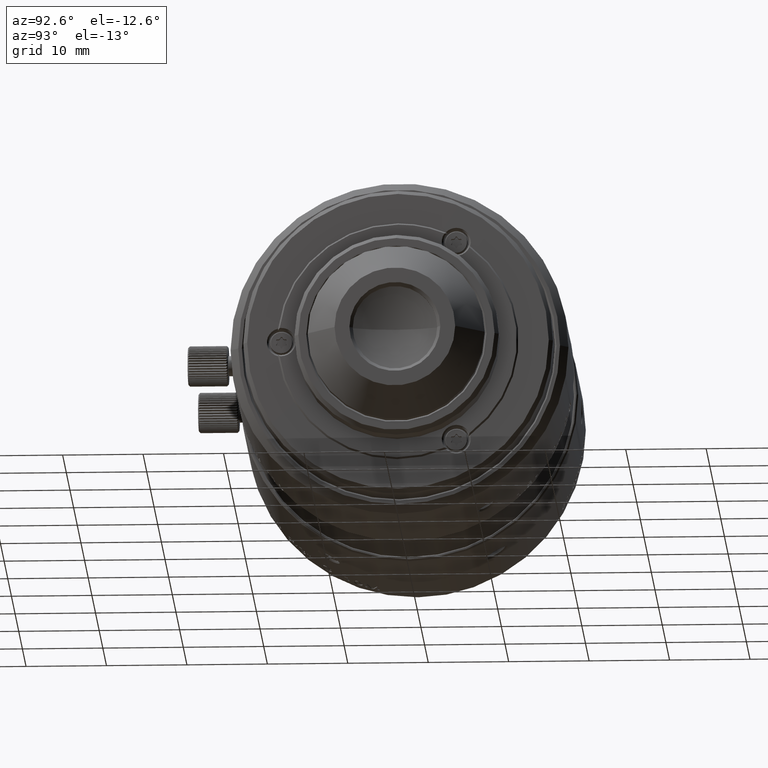
[diagram: clean part render]
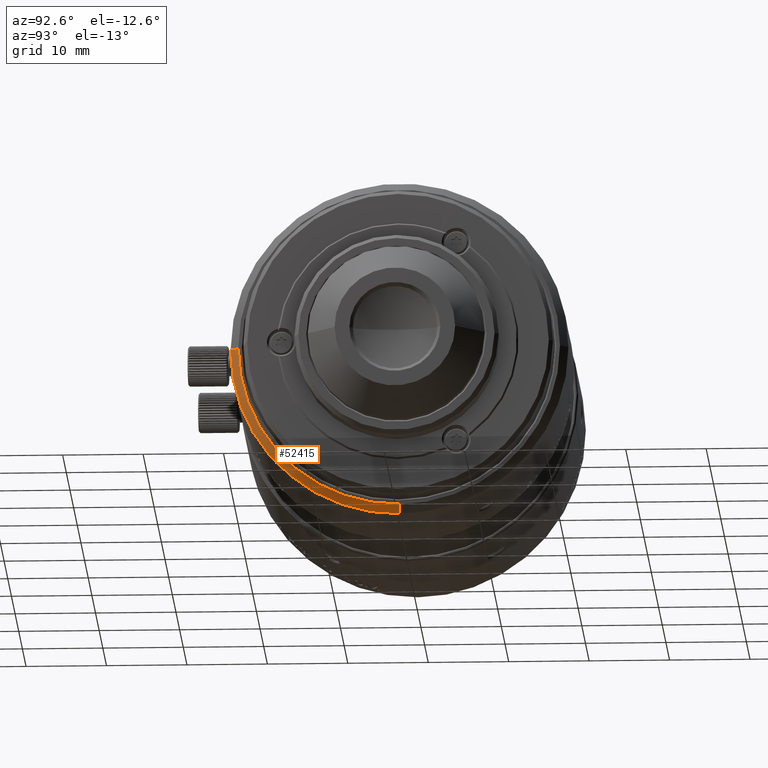
[diagram: same view with one face highlighted and labeled with its STEP entity id]
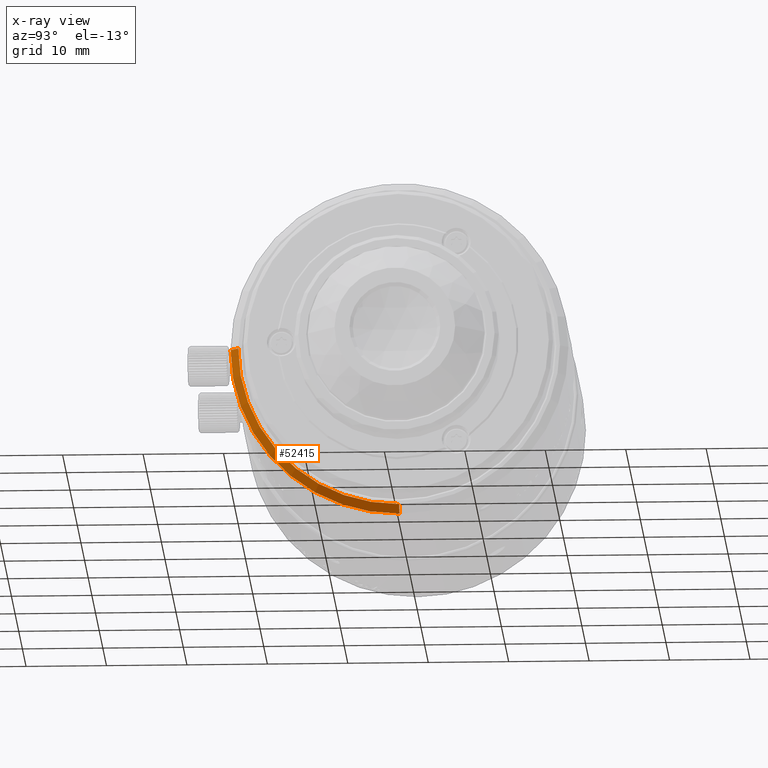
[diagram: x-ray of the same camera — body ghosted, the highlighted face saturated]
A machine part, auxiliary view. The second image highlights one B-rep face of the part: STEP entity #52415.
The next image is the same camera in x-ray: the body ghosted, the highlighted face saturated — about 0% of this face is hidden behind the body in this view.
In plain terms, the highlighted conical surface has half-angle 45 deg.
Its self-contained STEP definition (entity closure, byte-faithful):
#444 = DIRECTION ( 'NONE',  ( -1.000000000000000000, 0.000000000000000000, 0.000000000000000000 ) ) ;
#1432 = ORIENTED_EDGE ( 'NONE', *, *, #95945, .F. ) ;
#3779 = EDGE_CURVE ( 'NONE', #56837, #88262, #77096, .T. ) ;
#4043 = ORIENTED_EDGE ( 'NONE', *, *, #3779, .T. ) ;
#5712 = ORIENTED_EDGE ( 'NONE', *, *, #46629, .T. ) ;
#14974 = CARTESIAN_POINT ( 'NONE',  ( -12.65399999999999991, 0.000000000000000000, -20.99999999999989342 ) ) ;
#26358 = CARTESIAN_POINT ( 'NONE',  ( -11.65399999999999991, -20.00000000000000000, -3.253783274205000453E-10 ) ) ;
#28562 = VERTEX_POINT ( 'NONE', #14974 ) ;
#30476 = DIRECTION ( 'NONE',  ( 0.000000000000000000, 0.000000000000000000, -1.000000000000000000 ) ) ;
#32536 = VERTEX_POINT ( 'NONE', #118999 ) ;
#35574 = CIRCLE ( 'NONE', #37740, 20.00000000000000000 ) ;
#37740 = AXIS2_PLACEMENT_3D ( 'NONE', #77946, #444, #30476 ) ;
#40114 = AXIS2_PLACEMENT_3D ( 'NONE', #85152, #84502, #46415 ) ;
#41429 = VECTOR ( 'NONE', #109141, 1000.000000000000114 ) ;
#44189 = DIRECTION ( 'NONE',  ( 0.000000000000000000, 0.000000000000000000, -1.000000000000000000 ) ) ;
#46415 = DIRECTION ( 'NONE',  ( 0.000000000000000000, 0.000000000000000000, -1.000000000000000000 ) ) ;
#46629 = EDGE_CURVE ( 'NONE', #32536, #56837, #35574, .T. ) ;
#49211 = CARTESIAN_POINT ( 'NONE',  ( -11.65399999999999991, -20.00000000000000000, 0.000000000000000000 ) ) ;
#52415 = ADVANCED_FACE ( 'NONE', ( #127268 ), #55002, .T. ) ;
#55002 = CONICAL_SURFACE ( 'NONE', #40114, 20.50000000000000000, 0.7853981633972997312 ) ;
#56399 = EDGE_LOOP ( 'NONE', ( #80281, #5712, #4043, #1432 ) ) ;
#56837 = VERTEX_POINT ( 'NONE', #49211 ) ;
#63665 = VECTOR ( 'NONE', #110898, 1000.000000000000000 ) ;
#68141 = CARTESIAN_POINT ( 'NONE',  ( -12.65399999999999991, -21.00000000000000000, 2.890965651616000367E-10 ) ) ;
#77096 = LINE ( 'NONE', #26358, #41429 ) ;
#77946 = CARTESIAN_POINT ( 'NONE',  ( -11.65399999999999991, 0.000000000000000000, -4.182356850431999479E-14 ) ) ;
#80281 = ORIENTED_EDGE ( 'NONE', *, *, #92002, .F. ) ;
#84502 = DIRECTION ( 'NONE',  ( -1.000000000000000000, 0.000000000000000000, 0.000000000000000000 ) ) ;
#85152 = CARTESIAN_POINT ( 'NONE',  ( -12.15399999999999991, 0.000000000000000000, -4.182356850431999479E-14 ) ) ;
#88262 = VERTEX_POINT ( 'NONE', #68141 ) ;
#92002 = EDGE_CURVE ( 'NONE', #32536, #28562, #113549, .T. ) ;
#95945 = EDGE_CURVE ( 'NONE', #28562, #88262, #117268, .T. ) ;
#108732 = AXIS2_PLACEMENT_3D ( 'NONE', #113683, #124381, #44189 ) ;
#109141 = DIRECTION ( 'NONE',  ( -0.7071067811865474617, -0.7071067811865474617, 4.344993634137286776E-10 ) ) ;
#110898 = DIRECTION ( 'NONE',  ( -0.7071067811866525998, 0.000000000000000000, -0.7071067811864425456 ) ) ;
#113549 = LINE ( 'NONE', #120963, #63665 ) ;
#113683 = CARTESIAN_POINT ( 'NONE',  ( -12.65399999999999991, 0.000000000000000000, -4.182356850431999479E-14 ) ) ;
#117268 = CIRCLE ( 'NONE', #108732, 21.00000000000000000 ) ;
#118999 = CARTESIAN_POINT ( 'NONE',  ( -11.65399999999999991, 0.000000000000000000, -20.00000000000004263 ) ) ;
#120963 = CARTESIAN_POINT ( 'NONE',  ( -12.15399999999999991, 0.000000000000000000, -20.50000000000004263 ) ) ;
#124381 = DIRECTION ( 'NONE',  ( -1.000000000000000000, 0.000000000000000000, 0.000000000000000000 ) ) ;
#127268 = FACE_OUTER_BOUND ( 'NONE', #56399, .T. ) ;